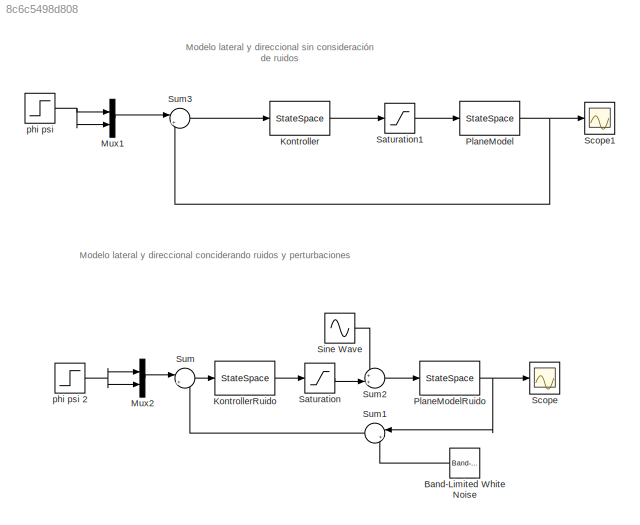
MODEL slx_8c6c5498d808
KIND model
CONFIG AbsTol = auto
CONFIG EnableMultiTasking = off
CONFIG FixedStep = auto
CONFIG MaxStep = auto
CONFIG MinStep = auto
CONFIG RelTol = 1e-3
CONFIG SampleTimeConstraint = Unconstrained
CONFIG SolverName = VariableStepAuto
CONFIG StartTime = 0.0
CONFIG StopTime = 10.0
BLOCK [Reference] Band-Limited White Noise  REF=simulink/Sources/Band-Limited
White Noise
  Ports = [0, 1]
  SourceBlock = simulink/Sources/Band-Limited\nWhite Noise
  SourceProductBaseCode = SL
  SourceType = Band-Limited White Noise.
BLOCK [StateSpace] Kontroller
  A = K.A
  B = K.B
  C = K.C
  D = K.D
  InitialCondition = 0
  Ports = [1, 1]
BLOCK [StateSpace] KontrollerRuido
  A = K.A
  B = K.B
  C = K.C
  D = K.D
  InitialCondition = 0
  Ports = [1, 1]
BLOCK [Mux] Mux1
  DisplayOption = bar
  Inputs = 2
  Ports = [2, 1]
BLOCK [Mux] Mux2
  DisplayOption = bar
  Inputs = 2
  Ports = [2, 1]
BLOCK [StateSpace] PlaneModel
  A = Alat
  B = Blat
  C = Clat
  D = Dlat
  InitialCondition = 0
  Ports = [1, 1]
BLOCK [StateSpace] PlaneModelRuido
  A = Alat
  B = Blat
  C = Clat
  D = Dlat
  InitialCondition = 0
  Ports = [1, 1]
BLOCK [Saturate] Saturation
  LowerLimit = -30
  UpperLimit = 30
BLOCK [Saturate] Saturation1
  LowerLimit = -30
  UpperLimit = 30
BLOCK [Scope] Scope
  Floating = off
  NumInputPorts = 1
  Ports = [1]
  ScopeSpecificationString = Simulink.scopes.TimeScopeBlockCfg('CurrentConfiguration', extmgr.ConfigurationSet(extmgr.Configuration('Core','General UI',true),extmgr.Configuration('Core','Source UI',true),extmgr.Configuration('Sources','WiredSimulink',true,'DataLoggingVariableName','ScopeData1'),extmgr.Configuration('Visuals','Time Domain',true,'SerializedDisplays',{struct('MinYLimReal','-6.9364','MaxYLimReal','60.23327','YLab...<+1915ch>
BLOCK [Scope] Scope1
  Floating = off
  NumInputPorts = 1
  Ports = [1]
  ScopeSpecificationString = Simulink.scopes.TimeScopeBlockCfg('CurrentConfiguration', extmgr.ConfigurationSet(extmgr.Configuration('Core','General UI',true),extmgr.Configuration('Core','Source UI',true),extmgr.Configuration('Sources','WiredSimulink',true),extmgr.Configuration('Visuals','Time Domain',true,'SerializedDisplays',{struct('MinYLimReal','-6.9364','MaxYLimReal','60.23327','YLabelReal','','MinYLimMag','0.00000','MaxY...<+1895ch>
BLOCK [Sin] Sine Wave
  Frequency = 12*pi
  Ports = [0, 1]
  SampleTime = 0
BLOCK [Sum] Sum
  Inputs = |+-
  Ports = [2, 1]
BLOCK [Sum] Sum1
  Inputs = |++
  Ports = [2, 1]
BLOCK [Sum] Sum2
  Inputs = ++|
  Ports = [2, 1]
BLOCK [Sum] Sum3
  Inputs = |+-
  Ports = [2, 1]
BLOCK [Step] phi psi
  After = 40
  SampleTime = 0
  Time = 0
BLOCK [Step] phi psi 2
  After = 40
  SampleTime = 0
ANNOTATION (root): Modelo lateral y direccional conciderando ruidos y perturbaciones
ANNOTATION (root): Modelo lateral y direccional sin consideración de ruidos
LINE Band-Limited White Noise:1 -> Sum1:2
LINE Kontroller:1 -> Saturation1:1
LINE KontrollerRuido:1 -> Saturation:1
LINE Mux1:1 -> Sum3:1
LINE Mux2:1 -> Sum:1
NET PlaneModel:1 -> Scope1:1, Sum3:2
NET PlaneModelRuido:1 -> Scope:1, Sum1:1
LINE Saturation1:1 -> PlaneModel:1
LINE Saturation:1 -> Sum2:2
LINE Sine Wave:1 -> Sum2:1
LINE Sum1:1 -> Sum:2
LINE Sum2:1 -> PlaneModelRuido:1
LINE Sum3:1 -> Kontroller:1
LINE Sum:1 -> KontrollerRuido:1
NET phi psi 2:1 -> Mux2:1, Mux2:2
NET phi psi:1 -> Mux1:1, Mux1:2
note: NET lines group one-source signal fan-out (src -> all destinations, sorted); 1:1 wires keep LINE
